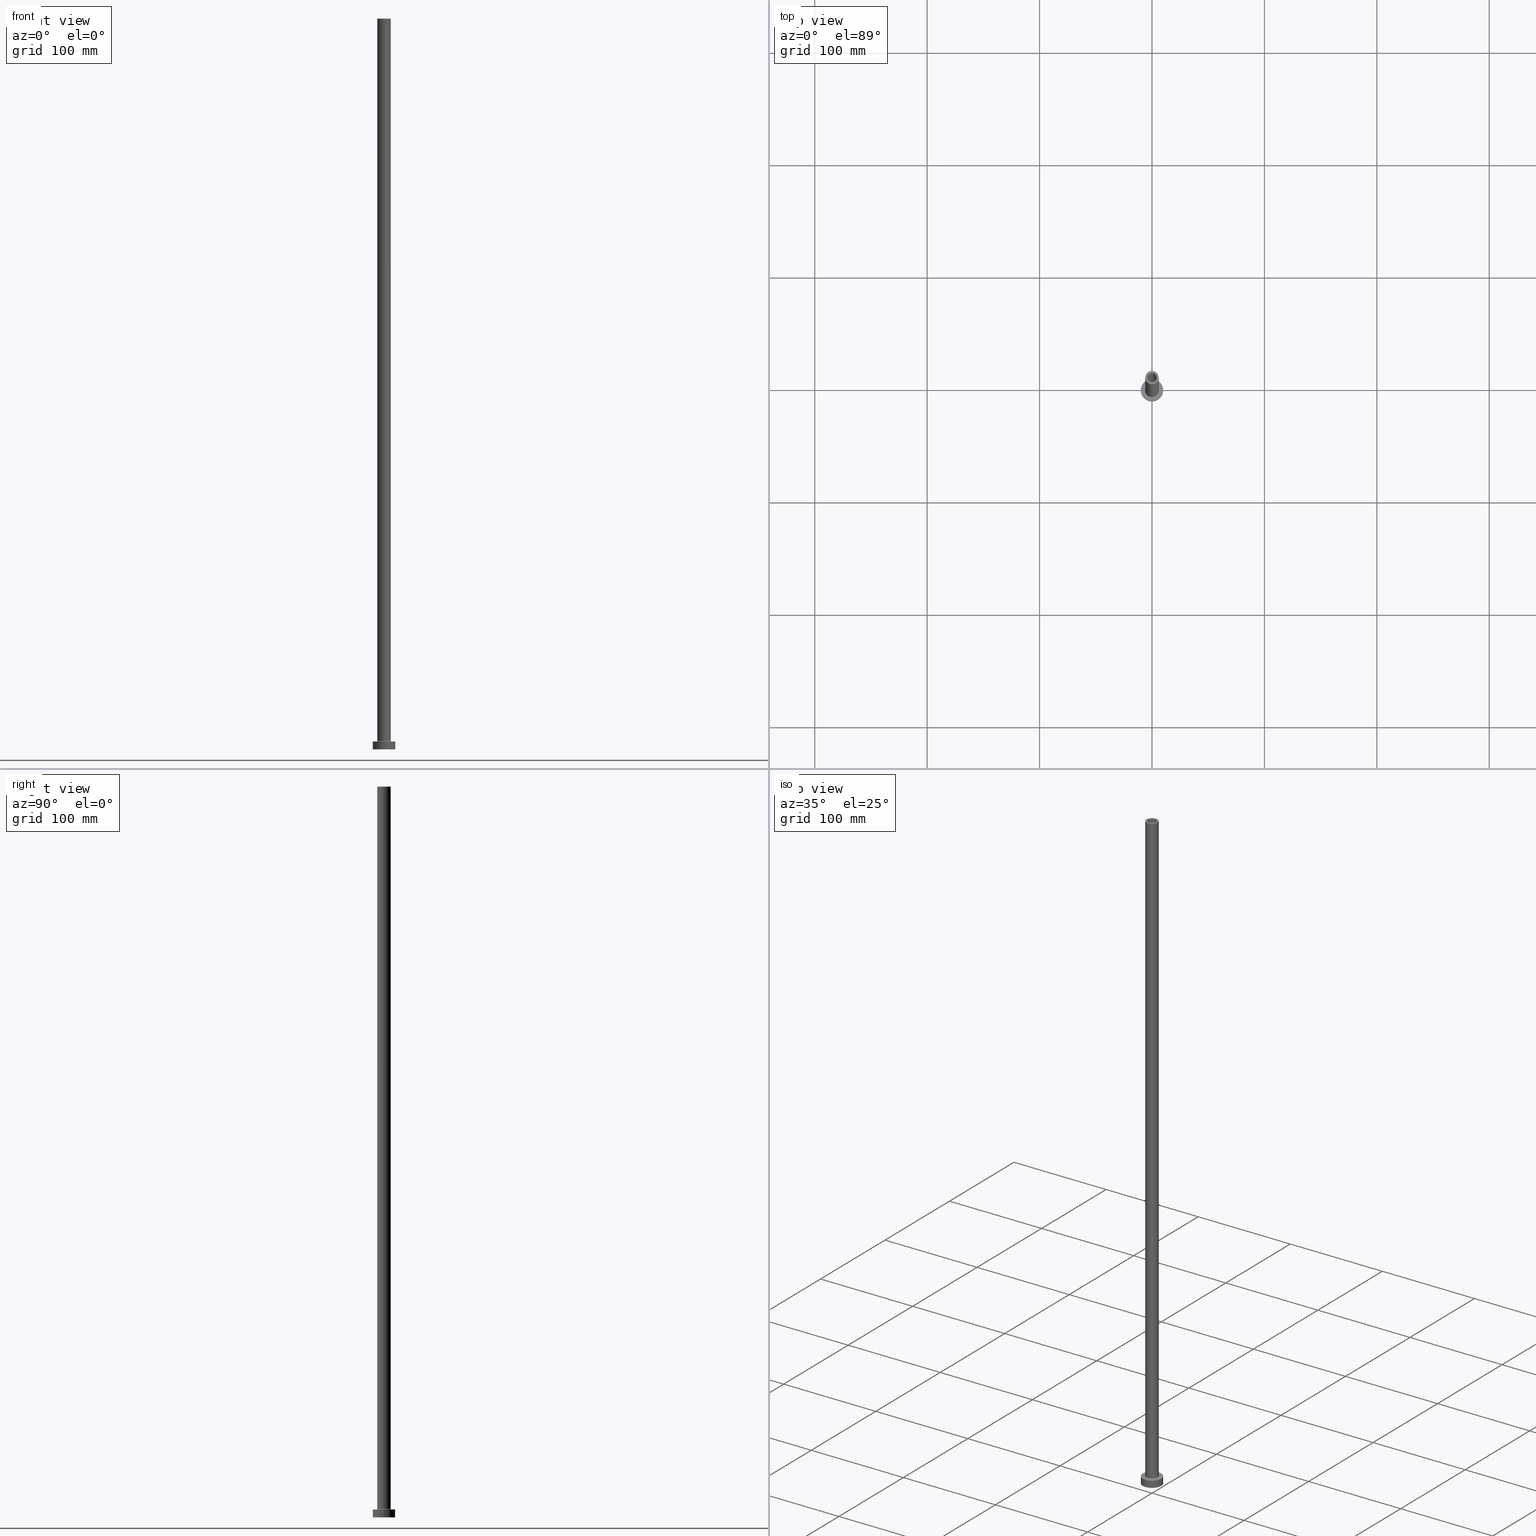
[diagram: canonical four-view strip — front | top / right | iso, engineering-drawing reading convention]
A machine part, canonical four-view strip (front | top / right | iso — engineering-drawing reading convention). The complete STEP part file that produces these views, byte-faithful:
ISO-10303-21;
HEADER;
FILE_DESCRIPTION (( 'STEP AP203' ),
    '1' );
FILE_NAME ('e93f.STEP',
    '2023-02-13T07:38:32',
    ( '' ),
    ( '' ),
    'SwSTEP 2.0',
    'SolidWorks 2019',
    '' );
FILE_SCHEMA (( 'CONFIG_CONTROL_DESIGN' ));
ENDSEC;

DATA;
#1 = DATE_AND_TIME ( #421, #439 ) ;
#2 = CYLINDRICAL_SURFACE ( 'NONE', #304, 6.000000000000000888 ) ;
#3 = CLOSED_SHELL ( 'NONE', ( #95, #387, #114, #127, #130, #330, #161, #177, #182, #401, #362, #192, #46, #265 ) ) ;
#4 = CYLINDRICAL_SURFACE ( 'NONE', #108, 10.00000000000000000 ) ;
#5 = ORIENTED_EDGE ( 'NONE', *, *, #250, .F. ) ;
#6 = CARTESIAN_POINT ( 'NONE',  ( 0.000000000000000000, 0.000000000000000000, 650.0000000000000000 ) ) ;
#7 = CARTESIAN_POINT ( 'NONE',  ( 0.000000000000000000, 0.000000000000000000, 0.000000000000000000 ) ) ;
#8 = AXIS2_PLACEMENT_3D ( 'NONE', #349, #128, #449 ) ;
#9 = CARTESIAN_POINT ( 'NONE',  ( 0.000000000000000000, 0.000000000000000000, 650.0000000000000000 ) ) ;
#10 = VERTEX_POINT ( 'NONE', #377 ) ;
#11 = FACE_OUTER_BOUND ( 'NONE', #22, .T. ) ;
#12 = CIRCLE ( 'NONE', #187, 6.000000000000000888 ) ;
#13 = LINE ( 'NONE', #302, #55 ) ;
#14 = FACE_OUTER_BOUND ( 'NONE', #152, .T. ) ;
#15 = CIRCLE ( 'NONE', #133, 6.000000000000000888 ) ;
#16 = ORIENTED_EDGE ( 'NONE', *, *, #17, .F. ) ;
#17 = EDGE_CURVE ( 'NONE', #320, #157, #146, .T. ) ;
#18 = CARTESIAN_POINT ( 'NONE',  ( 4.250000000000000000, 5.204748896376250699E-16, 0.000000000000000000 ) ) ;
#19 = DATE_AND_TIME ( #226, #85 ) ;
#20 = CC_DESIGN_PERSON_AND_ORGANIZATION_ASSIGNMENT ( #247, #131, ( #298 ) ) ;
#21 = DIRECTION ( 'NONE',  ( 1.000000000000000000, 0.000000000000000000, -0.000000000000000000 ) ) ;
#22 = EDGE_LOOP ( 'NONE', ( #419, #51, #282, #323 ) ) ;
#23 = ORIENTED_EDGE ( 'NONE', *, *, #240, .F. ) ;
#24 = SECURITY_CLASSIFICATION_LEVEL ( 'unclassified' ) ;
#25 = DIRECTION ( 'NONE',  ( 0.000000000000000000, 0.000000000000000000, 1.000000000000000000 ) ) ;
#26 = VERTEX_POINT ( 'NONE', #446 ) ;
#27 = DIRECTION ( 'NONE',  ( -0.000000000000000000, -0.000000000000000000, -1.000000000000000000 ) ) ;
#28 = ORIENTED_EDGE ( 'NONE', *, *, #214, .F. ) ;
#29 = VECTOR ( 'NONE', #448, 1000.000000000000000 ) ;
#30 = LOCAL_TIME ( 8, 38, 32.00000000000000000, #203 ) ;
#31 = CARTESIAN_POINT ( 'NONE',  ( 0.000000000000000000, 0.000000000000000000, 0.000000000000000000 ) ) ;
#32 = ORIENTED_EDGE ( 'NONE', *, *, #39, .T. ) ;
#33 = DIRECTION ( 'NONE',  ( -1.000000000000000000, 0.000000000000000000, 0.000000000000000000 ) ) ;
#34 = AXIS2_PLACEMENT_3D ( 'NONE', #246, #390, #172 ) ;
#35 = DIRECTION ( 'NONE',  ( 0.000000000000000000, 0.000000000000000000, 1.000000000000000000 ) ) ;
#36 = VERTEX_POINT ( 'NONE', #408 ) ;
#37 = PRODUCT_RELATED_PRODUCT_CATEGORY ( 'detail', '', ( #378 ) ) ;
#38 = CARTESIAN_POINT ( 'NONE',  ( 0.000000000000000000, 0.000000000000000000, 650.0000000000000000 ) ) ;
#39 = EDGE_CURVE ( 'NONE', #231, #43, #248, .T. ) ;
#40 = CARTESIAN_POINT ( 'NONE',  ( -6.000000000000000888, 0.000000000000000000, 650.0000000000000000 ) ) ;
#41 = VECTOR ( 'NONE', #170, 1000.000000000000000 ) ;
#42 = DIRECTION ( 'NONE',  ( 0.000000000000000000, 0.000000000000000000, 1.000000000000000000 ) ) ;
#43 = VERTEX_POINT ( 'NONE', #411 ) ;
#44 = APPROVAL_STATUS ( 'not_yet_approved' ) ;
#45 = ORIENTED_EDGE ( 'NONE', *, *, #81, .T. ) ;
#46 = ADVANCED_FACE ( 'NONE', ( #166, #129 ), #48, .F. ) ;
#47 = DIRECTION ( 'NONE',  ( -0.000000000000000000, -0.000000000000000000, -1.000000000000000000 ) ) ;
#48 = PLANE ( 'NONE',  #227 ) ;
#49 = AXIS2_PLACEMENT_3D ( 'NONE', #393, #241, #135 ) ;
#50 = APPROVAL_DATE_TIME ( #274, #65 ) ;
#51 = ORIENTED_EDGE ( 'NONE', *, *, #396, .T. ) ;
#52 = PERSON_AND_ORGANIZATION ( #344, #312 ) ;
#53 = ORIENTED_EDGE ( 'NONE', *, *, #396, .F. ) ;
#54 = APPLICATION_PROTOCOL_DEFINITION ( 'international standard', 'config_control_design', 1994, #441 ) ;
#55 = VECTOR ( 'NONE', #237, 1000.000000000000000 ) ;
#56 = CALENDAR_DATE ( 2023, 13, 2 ) ;
#57 = CARTESIAN_POINT ( 'NONE',  ( 0.000000000000000000, 0.000000000000000000, 617.0208152801712913 ) ) ;
#58 = EDGE_LOOP ( 'NONE', ( #60, #409 ) ) ;
#59 = CARTESIAN_POINT ( 'NONE',  ( 0.000000000000000000, 0.000000000000000000, 605.0000000000000000 ) ) ;
#60 = ORIENTED_EDGE ( 'NONE', *, *, #278, .F. ) ;
#61 = CYLINDRICAL_SURFACE ( 'NONE', #148, 4.250000000000000000 ) ;
#62 = VERTEX_POINT ( 'NONE', #18 ) ;
#63 = EDGE_CURVE ( 'NONE', #320, #36, #159, .T. ) ;
#64 = AXIS2_PLACEMENT_3D ( 'NONE', #59, #249, #324 ) ;
#65 = APPROVAL ( #271, 'NEUR�EN�' ) ;
#66 = APPROVAL_DATE_TIME ( #245, #460 ) ;
#67 = CARTESIAN_POINT ( 'NONE',  ( 6.000000000000000888, 7.347880794884120722E-16, 7.700000000000040146 ) ) ;
#68 = DIRECTION ( 'NONE',  ( 1.000000000000000000, 0.000000000000000000, 0.000000000000000000 ) ) ;
#69 = TOROIDAL_SURFACE ( 'NONE', #391, 6.700000000000001066, 0.6999999999999999556 ) ;
#70 = EDGE_CURVE ( 'NONE', #26, #97, #405, .T. ) ;
#71 = DIRECTION ( 'NONE',  ( 0.000000000000000000, 0.000000000000000000, 1.000000000000000000 ) ) ;
#72 = AXIS2_PLACEMENT_3D ( 'NONE', #351, #25, #178 ) ;
#73 = CARTESIAN_POINT ( 'NONE',  ( 0.000000000000000000, 0.000000000000000000, 0.000000000000000000 ) ) ;
#74 = DIRECTION ( 'NONE',  ( 1.000000000000000000, 0.000000000000000000, 0.000000000000000000 ) ) ;
#75 = ORIENTED_EDGE ( 'NONE', *, *, #326, .T. ) ;
#76 = CARTESIAN_POINT ( 'NONE',  ( 0.000000000000000000, 0.000000000000000000, 7.000000000000000000 ) ) ;
#77 = DIRECTION ( 'NONE',  ( 1.000000000000000000, 0.000000000000000000, 0.000000000000000000 ) ) ;
#78 = AXIS2_PLACEMENT_3D ( 'NONE', #374, #294, #74 ) ;
#79 = LOCAL_TIME ( 8, 38, 32.00000000000000000, #429 ) ;
#80 = CARTESIAN_POINT ( 'NONE',  ( -6.700000000000001066, 8.205133554287267548E-16, 7.000000000000020428 ) ) ;
#81 = EDGE_CURVE ( 'NONE', #352, #389, #455, .T. ) ;
#82 = ORIENTED_EDGE ( 'NONE', *, *, #214, .T. ) ;
#83 = FACE_BOUND ( 'NONE', #367, .T. ) ;
#84 = CARTESIAN_POINT ( 'NONE',  ( 0.000000000000000000, 0.000000000000000000, 650.0000000000000000 ) ) ;
#85 = LOCAL_TIME ( 8, 38, 32.00000000000000000, #276 ) ;
#86 = PLANE ( 'NONE',  #143 ) ;
#87 = CYLINDRICAL_SURFACE ( 'NONE', #279, 4.099999999999999645 ) ;
#88 = VERTEX_POINT ( 'NONE', #125 ) ;
#89 =( NAMED_UNIT ( * ) PLANE_ANGLE_UNIT ( ) SI_UNIT ( $, .RADIAN. ) );
#90 = DIRECTION ( 'NONE',  ( 0.000000000000000000, 0.000000000000000000, 1.000000000000000000 ) ) ;
#91 = ORIENTED_EDGE ( 'NONE', *, *, #346, .F. ) ;
#92 = CIRCLE ( 'NONE', #78, 6.700000000000001066 ) ;
#93 = AXIS2_PLACEMENT_3D ( 'NONE', #228, #123, #154 ) ;
#94 = PERSON_AND_ORGANIZATION ( #344, #312 ) ;
#95 = ADVANCED_FACE ( 'NONE', ( #415 ), #87, .F. ) ;
#96 = DIRECTION ( 'NONE',  ( 0.000000000000000000, 0.000000000000000000, 1.000000000000000000 ) ) ;
#97 = VERTEX_POINT ( 'NONE', #458 ) ;
#98 = APPROVAL_STATUS ( 'not_yet_approved' ) ;
#99 = DIRECTION ( 'NONE',  ( -1.000000000000000000, 0.000000000000000000, 0.000000000000000000 ) ) ;
#100 = ORIENTED_EDGE ( 'NONE', *, *, #278, .T. ) ;
#101 = CC_DESIGN_PERSON_AND_ORGANIZATION_ASSIGNMENT ( #342, #267, ( #117 ) ) ;
#102 = DIRECTION ( 'NONE',  ( -0.000000000000000000, -0.000000000000000000, -1.000000000000000000 ) ) ;
#103 = COORDINATED_UNIVERSAL_TIME_OFFSET ( 1, 0, .AHEAD. ) ;
#104 = CARTESIAN_POINT ( 'NONE',  ( 0.000000000000000000, 0.000000000000000000, 7.700000000000040146 ) ) ;
#105 = ORIENTED_EDGE ( 'NONE', *, *, #300, .T. ) ;
#106 = CARTESIAN_POINT ( 'NONE',  ( 6.000000000000000888, 7.347880794884120722E-16, 650.0000000000000000 ) ) ;
#107 = ORIENTED_EDGE ( 'NONE', *, *, #353, .F. ) ;
#108 = AXIS2_PLACEMENT_3D ( 'NONE', #132, #255, #33 ) ;
#109 = DIRECTION ( 'NONE',  ( 1.000000000000000000, 0.000000000000000000, 0.000000000000000000 ) ) ;
#110 = CC_DESIGN_DATE_AND_TIME_ASSIGNMENT ( #137, #457, ( #164 ) ) ;
#111 = EDGE_LOOP ( 'NONE', ( #258, #453, #32, #355 ) ) ;
#112 = VECTOR ( 'NONE', #368, 1000.000000000000000 ) ;
#113 = FACE_OUTER_BOUND ( 'NONE', #111, .T. ) ;
#114 = ADVANCED_FACE ( 'NONE', ( #208 ), #69, .F. ) ;
#115 = ORIENTED_EDGE ( 'NONE', *, *, #438, .F. ) ;
#116 = CARTESIAN_POINT ( 'NONE',  ( -4.250000000000000000, 0.000000000000000000, 605.0000000000000000 ) ) ;
#117 = PRODUCT_DEFINITION ( 'NEZN�M�', '', #298, #165 ) ;
#118 = CYLINDRICAL_SURFACE ( 'NONE', #394, 4.099999999999999645 ) ;
#119 = DIRECTION ( 'NONE',  ( -1.000000000000000000, 1.224646799147353454E-16, 0.000000000000000000 ) ) ;
#120 =( GEOMETRIC_REPRESENTATION_CONTEXT ( 3 ) GLOBAL_UNCERTAINTY_ASSIGNED_CONTEXT ( ( #244 ) ) GLOBAL_UNIT_ASSIGNED_CONTEXT ( ( #305, #89, #407 ) ) REPRESENTATION_CONTEXT ( 'NONE', 'WORKASPACE' ) );
#121 = PERSON_AND_ORGANIZATION ( #344, #312 ) ;
#122 = DIRECTION ( 'NONE',  ( -0.000000000000000000, -0.000000000000000000, -1.000000000000000000 ) ) ;
#123 = DIRECTION ( 'NONE',  ( 0.000000000000000000, 0.000000000000000000, 1.000000000000000000 ) ) ;
#124 = PRODUCT_DEFINITION_SHAPE ( 'NONE', 'NONE',  #117 ) ;
#125 = CARTESIAN_POINT ( 'NONE',  ( -6.000000000000000888, 0.000000000000000000, 7.700000000000040146 ) ) ;
#126 = AXIS2_PLACEMENT_3D ( 'NONE', #31, #102, #251 ) ;
#127 = ADVANCED_FACE ( 'NONE', ( #215 ), #284, .T. ) ;
#128 = DIRECTION ( 'NONE',  ( 0.000000000000000000, -1.000000000000000000, 0.000000000000000000 ) ) ;
#129 = FACE_OUTER_BOUND ( 'NONE', #162, .T. ) ;
#130 = ADVANCED_FACE ( 'NONE', ( #180 ), #4, .T. ) ;
#131 = PERSON_AND_ORGANIZATION_ROLE ( 'design_supplier' ) ;
#132 = CARTESIAN_POINT ( 'NONE',  ( 0.000000000000000000, 0.000000000000000000, 7.000000000000000000 ) ) ;
#133 = AXIS2_PLACEMENT_3D ( 'NONE', #406, #398, #223 ) ;
#134 = CC_DESIGN_APPROVAL ( #65, ( #117 ) ) ;
#135 = DIRECTION ( 'NONE',  ( 1.000000000000000000, 0.000000000000000000, 0.000000000000000000 ) ) ;
#136 = ORIENTED_EDGE ( 'NONE', *, *, #433, .T. ) ;
#137 = DATE_AND_TIME ( #56, #150 ) ;
#138 = DIRECTION ( 'NONE',  ( 1.000000000000000000, 0.000000000000000000, -0.000000000000000000 ) ) ;
#139 = EDGE_LOOP ( 'NONE', ( #222, #16, #306, #100 ) ) ;
#140 = DIRECTION ( 'NONE',  ( 0.000000000000000000, 0.000000000000000000, 1.000000000000000000 ) ) ;
#141 = VERTEX_POINT ( 'NONE', #175 ) ;
#142 = EDGE_CURVE ( 'NONE', #97, #26, #257, .T. ) ;
#143 = AXIS2_PLACEMENT_3D ( 'NONE', #268, #200, #337 ) ;
#144 = FACE_OUTER_BOUND ( 'NONE', #139, .T. ) ;
#145 = DIRECTION ( 'NONE',  ( 1.000000000000000000, 0.000000000000000000, 0.000000000000000000 ) ) ;
#146 = CIRCLE ( 'NONE', #280, 10.00000000000000000 ) ;
#147 = CARTESIAN_POINT ( 'NONE',  ( 4.099999999999999645, 5.021051876504147385E-16, 650.0000000000000000 ) ) ;
#148 = AXIS2_PLACEMENT_3D ( 'NONE', #57, #210, #206 ) ;
#149 = DIRECTION ( 'NONE',  ( 1.000000000000000000, 0.000000000000000000, 0.000000000000000000 ) ) ;
#150 = LOCAL_TIME ( 8, 38, 32.00000000000000000, #315 ) ;
#151 = ORIENTED_EDGE ( 'NONE', *, *, #63, .F. ) ;
#152 = EDGE_LOOP ( 'NONE', ( #105, #262 ) ) ;
#153 = CYLINDRICAL_SURFACE ( 'NONE', #260, 10.00000000000000000 ) ;
#154 = DIRECTION ( 'NONE',  ( 1.000000000000000000, 0.000000000000000000, 0.000000000000000000 ) ) ;
#155 = CIRCLE ( 'NONE', #72, 10.00000000000000000 ) ;
#156 = ORIENTED_EDGE ( 'NONE', *, *, #142, .F. ) ;
#157 = VERTEX_POINT ( 'NONE', #388 ) ;
#158 = DIRECTION ( 'NONE',  ( 0.000000000000000000, 0.000000000000000000, -1.000000000000000000 ) ) ;
#159 = LINE ( 'NONE', #307, #221 ) ;
#160 = LINE ( 'NONE', #414, #233 ) ;
#161 = ADVANCED_FACE ( 'NONE', ( #292, #216 ), #395, .T. ) ;
#162 = EDGE_LOOP ( 'NONE', ( #423, #432 ) ) ;
#163 = TOROIDAL_SURFACE ( 'NONE', #451, 6.700000000000001066, 0.6999999999999999556 ) ;
#164 = SECURITY_CLASSIFICATION ( '', '', #24 ) ;
#165 = DESIGN_CONTEXT ( 'detailed design', #441, 'design' ) ;
#166 = FACE_BOUND ( 'NONE', #238, .T. ) ;
#167 = ORIENTED_EDGE ( 'NONE', *, *, #250, .T. ) ;
#168 = EDGE_CURVE ( 'NONE', #389, #352, #412, .T. ) ;
#169 = PERSON_AND_ORGANIZATION_ROLE ( 'classification_officer' ) ;
#170 = DIRECTION ( 'NONE',  ( 0.000000000000000000, 0.000000000000000000, -1.000000000000000000 ) ) ;
#171 = ORIENTED_EDGE ( 'NONE', *, *, #184, .F. ) ;
#172 = DIRECTION ( 'NONE',  ( 1.000000000000000000, 0.000000000000000000, -0.000000000000000000 ) ) ;
#173 = CIRCLE ( 'NONE', #218, 6.000000000000000888 ) ;
#174 = PERSON_AND_ORGANIZATION_ROLE ( 'creator' ) ;
#175 = CARTESIAN_POINT ( 'NONE',  ( -4.099999999999999645, 0.000000000000000000, 605.0000000000000000 ) ) ;
#176 = ORIENTED_EDGE ( 'NONE', *, *, #269, .T. ) ;
#177 = ADVANCED_FACE ( 'NONE', ( #427, #354 ), #361, .F. ) ;
#178 = DIRECTION ( 'NONE',  ( 1.000000000000000000, 0.000000000000000000, 0.000000000000000000 ) ) ;
#179 = ORIENTED_EDGE ( 'NONE', *, *, #384, .F. ) ;
#180 = FACE_OUTER_BOUND ( 'NONE', #243, .T. ) ;
#181 = LINE ( 'NONE', #147, #195 ) ;
#182 = ADVANCED_FACE ( 'NONE', ( #318 ), #2, .T. ) ;
#183 = CARTESIAN_POINT ( 'NONE',  ( 0.000000000000000000, 0.000000000000000000, 0.000000000000000000 ) ) ;
#184 = EDGE_CURVE ( 'NONE', #440, #141, #310, .T. ) ;
#185 = DIRECTION ( 'NONE',  ( 1.000000000000000000, 0.000000000000000000, 0.000000000000000000 ) ) ;
#186 = ORIENTED_EDGE ( 'NONE', *, *, #370, .F. ) ;
#187 = AXIS2_PLACEMENT_3D ( 'NONE', #364, #371, #185 ) ;
#188 = CC_DESIGN_APPROVAL ( #460, ( #164 ) ) ;
#189 = DIRECTION ( 'NONE',  ( 1.000000000000000000, 0.000000000000000000, 0.000000000000000000 ) ) ;
#190 = CC_DESIGN_PERSON_AND_ORGANIZATION_ASSIGNMENT ( #254, #169, ( #164 ) ) ;
#191 = DIRECTION ( 'NONE',  ( 0.000000000000000000, 0.000000000000000000, -1.000000000000000000 ) ) ;
#192 = ADVANCED_FACE ( 'NONE', ( #286 ), #61, .F. ) ;
#193 = EDGE_LOOP ( 'NONE', ( #186, #275, #136, #171 ) ) ;
#194 = APPROVAL_ROLE ( '' ) ;
#195 = VECTOR ( 'NONE', #296, 1000.000000000000000 ) ;
#196 = CARTESIAN_POINT ( 'NONE',  ( 0.000000000000000000, 0.000000000000000000, 605.0000000000000000 ) ) ;
#197 = CARTESIAN_POINT ( 'NONE',  ( 6.000000000000000888, 7.347880794884120722E-16, 650.0000000000000000 ) ) ;
#198 = CARTESIAN_POINT ( 'NONE',  ( 0.000000000000000000, 0.000000000000000000, 605.0000000000000000 ) ) ;
#199 = AXIS2_PLACEMENT_3D ( 'NONE', #84, #234, #379 ) ;
#200 = DIRECTION ( 'NONE',  ( 0.000000000000000000, 0.000000000000000000, 1.000000000000000000 ) ) ;
#201 = APPROVAL ( #44, 'NEUR�EN�' ) ;
#202 = ORIENTED_EDGE ( 'NONE', *, *, #70, .F. ) ;
#203 = COORDINATED_UNIVERSAL_TIME_OFFSET ( 1, 0, .AHEAD. ) ;
#204 = DIRECTION ( 'NONE',  ( 1.000000000000000000, 0.000000000000000000, 0.000000000000000000 ) ) ;
#205 = VECTOR ( 'NONE', #47, 1000.000000000000000 ) ;
#206 = DIRECTION ( 'NONE',  ( -1.000000000000000000, 0.000000000000000000, 0.000000000000000000 ) ) ;
#207 = ORIENTED_EDGE ( 'NONE', *, *, #380, .T. ) ;
#208 = FACE_OUTER_BOUND ( 'NONE', #290, .T. ) ;
#209 = ORIENTED_EDGE ( 'NONE', *, *, #433, .F. ) ;
#210 = DIRECTION ( 'NONE',  ( 0.000000000000000000, 0.000000000000000000, -1.000000000000000000 ) ) ;
#211 = CIRCLE ( 'NONE', #273, 4.250000000000000000 ) ;
#212 = EDGE_LOOP ( 'NONE', ( #339, #82 ) ) ;
#213 = CC_DESIGN_SECURITY_CLASSIFICATION ( #164, ( #298 ) ) ;
#214 = EDGE_CURVE ( 'NONE', #157, #320, #155, .T. ) ;
#215 = FACE_OUTER_BOUND ( 'NONE', #360, .T. ) ;
#216 = FACE_OUTER_BOUND ( 'NONE', #212, .T. ) ;
#217 = CARTESIAN_POINT ( 'NONE',  ( -6.000000000000000888, 0.000000000000000000, 650.0000000000000000 ) ) ;
#218 = AXIS2_PLACEMENT_3D ( 'NONE', #434, #42, #77 ) ;
#219 = DIRECTION ( 'NONE',  ( 1.000000000000000000, 0.000000000000000000, 0.000000000000000000 ) ) ;
#220 = DIRECTION ( 'NONE',  ( 1.000000000000000000, 0.000000000000000000, 0.000000000000000000 ) ) ;
#221 = VECTOR ( 'NONE', #122, 1000.000000000000000 ) ;
#222 = ORIENTED_EDGE ( 'NONE', *, *, #435, .F. ) ;
#223 = DIRECTION ( 'NONE',  ( 1.000000000000000000, 0.000000000000000000, 0.000000000000000000 ) ) ;
#224 = EDGE_CURVE ( 'NONE', #389, #10, #357, .T. ) ;
#225 = DIRECTION ( 'NONE',  ( 0.000000000000000000, 0.000000000000000000, 1.000000000000000000 ) ) ;
#226 = CALENDAR_DATE ( 2023, 13, 2 ) ;
#227 = AXIS2_PLACEMENT_3D ( 'NONE', #196, #341, #21 ) ;
#228 = CARTESIAN_POINT ( 'NONE',  ( 0.000000000000000000, 0.000000000000000000, 0.000000000000000000 ) ) ;
#229 = ORIENTED_EDGE ( 'NONE', *, *, #370, .T. ) ;
#230 = EDGE_CURVE ( 'NONE', #10, #62, #332, .T. ) ;
#231 = VERTEX_POINT ( 'NONE', #67 ) ;
#232 = CALENDAR_DATE ( 2023, 13, 2 ) ;
#233 = VECTOR ( 'NONE', #158, 1000.000000000000000 ) ;
#234 = DIRECTION ( 'NONE',  ( 0.000000000000000000, 0.000000000000000000, 1.000000000000000000 ) ) ;
#235 = LINE ( 'NONE', #197, #205 ) ;
#236 = ORIENTED_EDGE ( 'NONE', *, *, #303, .T. ) ;
#237 = DIRECTION ( 'NONE',  ( 0.000000000000000000, 0.000000000000000000, -1.000000000000000000 ) ) ;
#238 = EDGE_LOOP ( 'NONE', ( #385, #287 ) ) ;
#239 = EDGE_LOOP ( 'NONE', ( #270, #23 ) ) ;
#240 = EDGE_CURVE ( 'NONE', #62, #10, #211, .T. ) ;
#241 = DIRECTION ( 'NONE',  ( 0.000000000000000000, 0.000000000000000000, 1.000000000000000000 ) ) ;
#242 = AXIS2_PLACEMENT_3D ( 'NONE', #295, #71, #189 ) ;
#243 = EDGE_LOOP ( 'NONE', ( #28, #383, #75, #151 ) ) ;
#244 = UNCERTAINTY_MEASURE_WITH_UNIT (LENGTH_MEASURE( 1.000000000000000082E-05 ), #305, 'distance_accuracy_value', 'NONE');
#245 = DATE_AND_TIME ( #424, #79 ) ;
#246 = CARTESIAN_POINT ( 'NONE',  ( 0.000000000000000000, 0.000000000000000000, 7.000000000000000000 ) ) ;
#247 = PERSON_AND_ORGANIZATION ( #344, #312 ) ;
#248 = CIRCLE ( 'NONE', #8, 0.7000000000000000666 ) ;
#249 = DIRECTION ( 'NONE',  ( 0.000000000000000000, 0.000000000000000000, 1.000000000000000000 ) ) ;
#250 = EDGE_CURVE ( 'NONE', #88, #231, #173, .T. ) ;
#251 = DIRECTION ( 'NONE',  ( 1.000000000000000000, 0.000000000000000000, 0.000000000000000000 ) ) ;
#252 = AXIS2_PLACEMENT_3D ( 'NONE', #417, #340, #119 ) ;
#253 = CC_DESIGN_PERSON_AND_ORGANIZATION_ASSIGNMENT ( #94, #174, ( #298 ) ) ;
#254 = PERSON_AND_ORGANIZATION ( #344, #312 ) ;
#255 = DIRECTION ( 'NONE',  ( -0.000000000000000000, -0.000000000000000000, -1.000000000000000000 ) ) ;
#256 = DIRECTION ( 'NONE',  ( -0.000000000000000000, -0.000000000000000000, -1.000000000000000000 ) ) ;
#257 = CIRCLE ( 'NONE', #459, 4.099999999999999645 ) ;
#258 = ORIENTED_EDGE ( 'NONE', *, *, #456, .F. ) ;
#259 = DIRECTION ( 'NONE',  ( -0.000000000000000000, -0.000000000000000000, -1.000000000000000000 ) ) ;
#260 = AXIS2_PLACEMENT_3D ( 'NONE', #76, #256, #366 ) ;
#261 = DIRECTION ( 'NONE',  ( -0.000000000000000000, -0.000000000000000000, -1.000000000000000000 ) ) ;
#262 = ORIENTED_EDGE ( 'NONE', *, *, #353, .T. ) ;
#263 = FACE_OUTER_BOUND ( 'NONE', #193, .T. ) ;
#264 = ORIENTED_EDGE ( 'NONE', *, *, #438, .T. ) ;
#265 = ADVANCED_FACE ( 'NONE', ( #263 ), #118, .F. ) ;
#266 = DIRECTION ( 'NONE',  ( -1.000000000000000000, 0.000000000000000000, 0.000000000000000000 ) ) ;
#267 = PERSON_AND_ORGANIZATION_ROLE ( 'creator' ) ;
#268 = CARTESIAN_POINT ( 'NONE',  ( 0.000000000000000000, 0.000000000000000000, 650.0000000000000000 ) ) ;
#269 = EDGE_CURVE ( 'NONE', #231, #88, #15, .T. ) ;
#270 = ORIENTED_EDGE ( 'NONE', *, *, #230, .F. ) ;
#271 = APPROVAL_STATUS ( 'not_yet_approved' ) ;
#272 = ORIENTED_EDGE ( 'NONE', *, *, #70, .T. ) ;
#273 = AXIS2_PLACEMENT_3D ( 'NONE', #7, #259, #109 ) ;
#274 = DATE_AND_TIME ( #232, #30 ) ;
#275 = ORIENTED_EDGE ( 'NONE', *, *, #142, .T. ) ;
#276 = COORDINATED_UNIVERSAL_TIME_OFFSET ( 1, 0, .AHEAD. ) ;
#277 = ORIENTED_EDGE ( 'NONE', *, *, #384, .T. ) ;
#278 = EDGE_CURVE ( 'NONE', #36, #313, #285, .T. ) ;
#279 = AXIS2_PLACEMENT_3D ( 'NONE', #382, #425, #99 ) ;
#280 = AXIS2_PLACEMENT_3D ( 'NONE', #454, #90, #204 ) ;
#281 = DIRECTION ( 'NONE',  ( -1.000000000000000000, 0.000000000000000000, 0.000000000000000000 ) ) ;
#282 = ORIENTED_EDGE ( 'NONE', *, *, #240, .T. ) ;
#283 = APPROVAL_ROLE ( '' ) ;
#284 = CYLINDRICAL_SURFACE ( 'NONE', #447, 6.000000000000000888 ) ;
#285 = CIRCLE ( 'NONE', #372, 10.00000000000000000 ) ;
#286 = FACE_OUTER_BOUND ( 'NONE', #399, .T. ) ;
#287 = ORIENTED_EDGE ( 'NONE', *, *, #184, .T. ) ;
#288 = CARTESIAN_POINT ( 'NONE',  ( 0.000000000000000000, 0.000000000000000000, 650.0000000000000000 ) ) ;
#289 = CC_DESIGN_PERSON_AND_ORGANIZATION_ASSIGNMENT ( #121, #381, ( #378 ) ) ;
#290 = EDGE_LOOP ( 'NONE', ( #5, #386, #334, #314 ) ) ;
#291 = APPLICATION_CONTEXT ( 'configuration controlled 3d designs of mechanical parts and assemblies' ) ;
#292 = FACE_BOUND ( 'NONE', #428, .T. ) ;
#293 = AXIS2_PLACEMENT_3D ( 'NONE', #9, #225, #149 ) ;
#294 = DIRECTION ( 'NONE',  ( -0.000000000000000000, -0.000000000000000000, -1.000000000000000000 ) ) ;
#295 = CARTESIAN_POINT ( 'NONE',  ( 0.000000000000000000, 0.000000000000000000, 605.0000000000000000 ) ) ;
#296 = DIRECTION ( 'NONE',  ( 0.000000000000000000, 0.000000000000000000, -1.000000000000000000 ) ) ;
#297 = VERTEX_POINT ( 'NONE', #106 ) ;
#298 = PRODUCT_DEFINITION_FORMATION_WITH_SPECIFIED_SOURCE ( 'LIBOVOLN�', '', #378, .NOT_KNOWN. ) ;
#299 = DIRECTION ( 'NONE',  ( 0.000000000000000000, 0.000000000000000000, -1.000000000000000000 ) ) ;
#300 = EDGE_CURVE ( 'NONE', #338, #297, #437, .T. ) ;
#301 = ORIENTED_EDGE ( 'NONE', *, *, #300, .F. ) ;
#302 = CARTESIAN_POINT ( 'NONE',  ( 4.250000000000000000, 5.204748896376250699E-16, 617.0208152801712913 ) ) ;
#303 = EDGE_CURVE ( 'NONE', #450, #43, #92, .T. ) ;
#304 = AXIS2_PLACEMENT_3D ( 'NONE', #6, #422, #461 ) ;
#305 =( LENGTH_UNIT ( ) NAMED_UNIT ( * ) SI_UNIT ( .MILLI., .METRE. ) );
#306 = ORIENTED_EDGE ( 'NONE', *, *, #63, .T. ) ;
#307 = CARTESIAN_POINT ( 'NONE',  ( -10.00000000000000000, 0.000000000000000000, 7.000000000000000000 ) ) ;
#308 = CARTESIAN_POINT ( 'NONE',  ( 10.00000000000000000, 1.224646799147353256E-15, 7.000000000000000000 ) ) ;
#309 = DIRECTION ( 'NONE',  ( 1.000000000000000000, 0.000000000000000000, 0.000000000000000000 ) ) ;
#310 = CIRCLE ( 'NONE', #49, 4.099999999999999645 ) ;
#311 = DATE_TIME_ROLE ( 'creation_date' ) ;
#312 = ORGANIZATION ( 'NEUR�EN�', 'NEUR�EN�', '' ) ;
#313 = VERTEX_POINT ( 'NONE', #404 ) ;
#314 = ORIENTED_EDGE ( 'NONE', *, *, #39, .F. ) ;
#315 = COORDINATED_UNIVERSAL_TIME_OFFSET ( 1, 0, .AHEAD. ) ;
#316 = CARTESIAN_POINT ( 'NONE',  ( 0.000000000000000000, 0.000000000000000000, 650.0000000000000000 ) ) ;
#317 = ADVANCED_BREP_SHAPE_REPRESENTATION ( 'e93f', ( #420, #93 ), #120 ) ;
#318 = FACE_OUTER_BOUND ( 'NONE', #369, .T. ) ;
#319 = CIRCLE ( 'NONE', #348, 6.700000000000001066 ) ;
#320 = VERTEX_POINT ( 'NONE', #436 ) ;
#321 = DIRECTION ( 'NONE',  ( 1.000000000000000000, 0.000000000000000000, 0.000000000000000000 ) ) ;
#322 = DIRECTION ( 'NONE',  ( 0.000000000000000000, 0.000000000000000000, 1.000000000000000000 ) ) ;
#323 = ORIENTED_EDGE ( 'NONE', *, *, #224, .F. ) ;
#324 = DIRECTION ( 'NONE',  ( 1.000000000000000000, 0.000000000000000000, 0.000000000000000000 ) ) ;
#325 = AXIS2_PLACEMENT_3D ( 'NONE', #363, #140, #138 ) ;
#326 = EDGE_CURVE ( 'NONE', #313, #36, #365, .T. ) ;
#327 = APPROVAL_PERSON_ORGANIZATION ( #375, #201, #194 ) ;
#328 = CARTESIAN_POINT ( 'NONE',  ( 0.000000000000000000, 0.000000000000000000, 7.000000000000000000 ) ) ;
#329 = DIRECTION ( 'NONE',  ( 1.000000000000000000, 0.000000000000000000, 0.000000000000000000 ) ) ;
#330 = ADVANCED_FACE ( 'NONE', ( #144 ), #153, .T. ) ;
#331 = CARTESIAN_POINT ( 'NONE',  ( 0.000000000000000000, 0.000000000000000000, 7.700000000000040146 ) ) ;
#332 = CIRCLE ( 'NONE', #126, 4.250000000000000000 ) ;
#333 = CARTESIAN_POINT ( 'NONE',  ( 0.000000000000000000, 0.000000000000000000, 617.0208152801712913 ) ) ;
#334 = ORIENTED_EDGE ( 'NONE', *, *, #380, .F. ) ;
#335 = DIRECTION ( 'NONE',  ( 0.000000000000000000, 0.000000000000000000, 1.000000000000000000 ) ) ;
#336 = AXIS2_PLACEMENT_3D ( 'NONE', #198, #343, #309 ) ;
#337 = DIRECTION ( 'NONE',  ( 1.000000000000000000, 0.000000000000000000, -0.000000000000000000 ) ) ;
#338 = VERTEX_POINT ( 'NONE', #217 ) ;
#339 = ORIENTED_EDGE ( 'NONE', *, *, #17, .T. ) ;
#340 = DIRECTION ( 'NONE',  ( 1.224646799147353207E-16, 1.000000000000000000, -0.000000000000000000 ) ) ;
#341 = DIRECTION ( 'NONE',  ( 0.000000000000000000, 0.000000000000000000, 1.000000000000000000 ) ) ;
#342 = PERSON_AND_ORGANIZATION ( #344, #312 ) ;
#343 = DIRECTION ( 'NONE',  ( 0.000000000000000000, 0.000000000000000000, 1.000000000000000000 ) ) ;
#344 = PERSON ( 'NEUR�EN�', 'NEUR�EN�', 'NEUR�EN�', ('NEUR�EN�'), ('NEUR�EN�'), ('NEUR�EN�') ) ;
#345 = LINE ( 'NONE', #308, #29 ) ;
#346 = EDGE_CURVE ( 'NONE', #141, #440, #445, .T. ) ;
#347 = EDGE_LOOP ( 'NONE', ( #272, #229, #91, #209 ) ) ;
#348 = AXIS2_PLACEMENT_3D ( 'NONE', #328, #261, #220 ) ;
#349 = CARTESIAN_POINT ( 'NONE',  ( 6.700000000000001066, 0.000000000000000000, 7.700000000000040146 ) ) ;
#350 = PERSON_AND_ORGANIZATION ( #344, #312 ) ;
#351 = CARTESIAN_POINT ( 'NONE',  ( 0.000000000000000000, 0.000000000000000000, 7.000000000000000000 ) ) ;
#352 = VERTEX_POINT ( 'NONE', #400 ) ;
#353 = EDGE_CURVE ( 'NONE', #297, #338, #12, .T. ) ;
#354 = FACE_OUTER_BOUND ( 'NONE', #58, .T. ) ;
#355 = ORIENTED_EDGE ( 'NONE', *, *, #303, .F. ) ;
#356 = CIRCLE ( 'NONE', #252, 0.7000000000000000666 ) ;
#357 = LINE ( 'NONE', #430, #41 ) ;
#358 = AXIS2_PLACEMENT_3D ( 'NONE', #333, #299, #442 ) ;
#359 = APPROVAL_PERSON_ORGANIZATION ( #52, #65, #410 ) ;
#360 = EDGE_LOOP ( 'NONE', ( #107, #264, #176, #179 ) ) ;
#361 = PLANE ( 'NONE',  #325 ) ;
#362 = ADVANCED_FACE ( 'NONE', ( #113 ), #163, .F. ) ;
#363 = CARTESIAN_POINT ( 'NONE',  ( 0.000000000000000000, 0.000000000000000000, 0.000000000000000000 ) ) ;
#364 = CARTESIAN_POINT ( 'NONE',  ( 0.000000000000000000, 0.000000000000000000, 650.0000000000000000 ) ) ;
#365 = CIRCLE ( 'NONE', #402, 10.00000000000000000 ) ;
#366 = DIRECTION ( 'NONE',  ( -1.000000000000000000, 0.000000000000000000, 0.000000000000000000 ) ) ;
#367 = EDGE_LOOP ( 'NONE', ( #202, #156 ) ) ;
#368 = DIRECTION ( 'NONE',  ( -0.000000000000000000, -0.000000000000000000, -1.000000000000000000 ) ) ;
#369 = EDGE_LOOP ( 'NONE', ( #115, #301, #277, #167 ) ) ;
#370 = EDGE_CURVE ( 'NONE', #97, #440, #181, .T. ) ;
#371 = DIRECTION ( 'NONE',  ( 0.000000000000000000, 0.000000000000000000, 1.000000000000000000 ) ) ;
#372 = AXIS2_PLACEMENT_3D ( 'NONE', #73, #431, #145 ) ;
#373 = CC_DESIGN_APPROVAL ( #201, ( #298 ) ) ;
#374 = CARTESIAN_POINT ( 'NONE',  ( 0.000000000000000000, 0.000000000000000000, 7.000000000000000000 ) ) ;
#375 = PERSON_AND_ORGANIZATION ( #344, #312 ) ;
#376 = APPLICATION_PROTOCOL_DEFINITION ( 'international standard', 'config_control_design', 1994, #291 ) ;
#377 = CARTESIAN_POINT ( 'NONE',  ( -4.250000000000000000, 0.000000000000000000, 0.000000000000000000 ) ) ;
#378 = PRODUCT ( 'e93f', 'e93f', '', ( #444 ) ) ;
#379 = DIRECTION ( 'NONE',  ( 1.000000000000000000, 0.000000000000000000, 0.000000000000000000 ) ) ;
#380 = EDGE_CURVE ( 'NONE', #43, #450, #319, .T. ) ;
#381 = PERSON_AND_ORGANIZATION_ROLE ( 'design_owner' ) ;
#382 = CARTESIAN_POINT ( 'NONE',  ( 0.000000000000000000, 0.000000000000000000, 650.0000000000000000 ) ) ;
#383 = ORIENTED_EDGE ( 'NONE', *, *, #435, .T. ) ;
#384 = EDGE_CURVE ( 'NONE', #338, #88, #403, .T. ) ;
#385 = ORIENTED_EDGE ( 'NONE', *, *, #346, .T. ) ;
#386 = ORIENTED_EDGE ( 'NONE', *, *, #456, .T. ) ;
#387 = ADVANCED_FACE ( 'NONE', ( #11 ), #443, .F. ) ;
#388 = CARTESIAN_POINT ( 'NONE',  ( 10.00000000000000000, 1.224646799147353256E-15, 7.000000000000000000 ) ) ;
#389 = VERTEX_POINT ( 'NONE', #116 ) ;
#390 = DIRECTION ( 'NONE',  ( 0.000000000000000000, 0.000000000000000000, 1.000000000000000000 ) ) ;
#391 = AXIS2_PLACEMENT_3D ( 'NONE', #104, #322, #321 ) ;
#392 = APPROVAL_DATE_TIME ( #1, #201 ) ;
#393 = CARTESIAN_POINT ( 'NONE',  ( 0.000000000000000000, 0.000000000000000000, 605.0000000000000000 ) ) ;
#394 = AXIS2_PLACEMENT_3D ( 'NONE', #38, #191, #266 ) ;
#395 = PLANE ( 'NONE',  #34 ) ;
#396 = EDGE_CURVE ( 'NONE', #352, #62, #13, .T. ) ;
#397 = SHAPE_DEFINITION_REPRESENTATION ( #124, #317 ) ;
#398 = DIRECTION ( 'NONE',  ( 0.000000000000000000, 0.000000000000000000, 1.000000000000000000 ) ) ;
#399 = EDGE_LOOP ( 'NONE', ( #53, #45, #426, #418 ) ) ;
#400 = CARTESIAN_POINT ( 'NONE',  ( 4.250000000000000000, 5.204748896376250699E-16, 605.0000000000000000 ) ) ;
#401 = ADVANCED_FACE ( 'NONE', ( #83, #14 ), #86, .T. ) ;
#402 = AXIS2_PLACEMENT_3D ( 'NONE', #183, #335, #219 ) ;
#403 = LINE ( 'NONE', #40, #112 ) ;
#404 = CARTESIAN_POINT ( 'NONE',  ( 10.00000000000000000, 1.224646799147353256E-15, 0.000000000000000000 ) ) ;
#405 = CIRCLE ( 'NONE', #199, 4.099999999999999645 ) ;
#406 = CARTESIAN_POINT ( 'NONE',  ( 0.000000000000000000, 0.000000000000000000, 7.700000000000040146 ) ) ;
#407 =( NAMED_UNIT ( * ) SI_UNIT ( $, .STERADIAN. ) SOLID_ANGLE_UNIT ( ) );
#408 = CARTESIAN_POINT ( 'NONE',  ( -10.00000000000000000, 0.000000000000000000, 0.000000000000000000 ) ) ;
#409 = ORIENTED_EDGE ( 'NONE', *, *, #326, .F. ) ;
#410 = APPROVAL_ROLE ( '' ) ;
#411 = CARTESIAN_POINT ( 'NONE',  ( 6.700000000000001066, 0.000000000000000000, 7.000000000000020428 ) ) ;
#412 = CIRCLE ( 'NONE', #64, 4.250000000000000000 ) ;
#413 = APPROVAL_PERSON_ORGANIZATION ( #350, #460, #283 ) ;
#414 = CARTESIAN_POINT ( 'NONE',  ( -4.099999999999999645, 0.000000000000000000, 650.0000000000000000 ) ) ;
#415 = FACE_OUTER_BOUND ( 'NONE', #347, .T. ) ;
#416 = CC_DESIGN_DATE_AND_TIME_ASSIGNMENT ( #19, #311, ( #117 ) ) ;
#417 = CARTESIAN_POINT ( 'NONE',  ( -6.700000000000001066, 8.205133554287267548E-16, 7.700000000000040146 ) ) ;
#418 = ORIENTED_EDGE ( 'NONE', *, *, #230, .T. ) ;
#419 = ORIENTED_EDGE ( 'NONE', *, *, #168, .T. ) ;
#420 = MANIFOLD_SOLID_BREP ( 'Odebrat vysunut�m4', #3 ) ;
#421 = CALENDAR_DATE ( 2023, 13, 2 ) ;
#422 = DIRECTION ( 'NONE',  ( -0.000000000000000000, -0.000000000000000000, -1.000000000000000000 ) ) ;
#423 = ORIENTED_EDGE ( 'NONE', *, *, #168, .F. ) ;
#424 = CALENDAR_DATE ( 2023, 13, 2 ) ;
#425 = DIRECTION ( 'NONE',  ( 0.000000000000000000, 0.000000000000000000, -1.000000000000000000 ) ) ;
#426 = ORIENTED_EDGE ( 'NONE', *, *, #224, .T. ) ;
#427 = FACE_BOUND ( 'NONE', #239, .T. ) ;
#428 = EDGE_LOOP ( 'NONE', ( #207, #236 ) ) ;
#429 = COORDINATED_UNIVERSAL_TIME_OFFSET ( 1, 0, .AHEAD. ) ;
#430 = CARTESIAN_POINT ( 'NONE',  ( -4.250000000000000000, 0.000000000000000000, 617.0208152801712913 ) ) ;
#431 = DIRECTION ( 'NONE',  ( 0.000000000000000000, 0.000000000000000000, 1.000000000000000000 ) ) ;
#432 = ORIENTED_EDGE ( 'NONE', *, *, #81, .F. ) ;
#433 = EDGE_CURVE ( 'NONE', #26, #141, #160, .T. ) ;
#434 = CARTESIAN_POINT ( 'NONE',  ( 0.000000000000000000, 0.000000000000000000, 7.700000000000040146 ) ) ;
#435 = EDGE_CURVE ( 'NONE', #157, #313, #345, .T. ) ;
#436 = CARTESIAN_POINT ( 'NONE',  ( -10.00000000000000000, 0.000000000000000000, 7.000000000000000000 ) ) ;
#437 = CIRCLE ( 'NONE', #293, 6.000000000000000888 ) ;
#438 = EDGE_CURVE ( 'NONE', #297, #231, #235, .T. ) ;
#439 = LOCAL_TIME ( 8, 38, 32.00000000000000000, #103 ) ;
#440 = VERTEX_POINT ( 'NONE', #452 ) ;
#441 = APPLICATION_CONTEXT ( 'configuration controlled 3d designs of mechanical parts and assemblies' ) ;
#442 = DIRECTION ( 'NONE',  ( -1.000000000000000000, 0.000000000000000000, 0.000000000000000000 ) ) ;
#443 = CYLINDRICAL_SURFACE ( 'NONE', #358, 4.250000000000000000 ) ;
#444 = MECHANICAL_CONTEXT ( 'NONE', #291, 'mechanical' ) ;
#445 = CIRCLE ( 'NONE', #242, 4.099999999999999645 ) ;
#446 = CARTESIAN_POINT ( 'NONE',  ( -4.099999999999999645, 0.000000000000000000, 650.0000000000000000 ) ) ;
#447 = AXIS2_PLACEMENT_3D ( 'NONE', #316, #27, #281 ) ;
#448 = DIRECTION ( 'NONE',  ( -0.000000000000000000, -0.000000000000000000, -1.000000000000000000 ) ) ;
#449 = DIRECTION ( 'NONE',  ( 0.000000000000000000, 0.000000000000000000, -1.000000000000000000 ) ) ;
#450 = VERTEX_POINT ( 'NONE', #80 ) ;
#451 = AXIS2_PLACEMENT_3D ( 'NONE', #331, #35, #329 ) ;
#452 = CARTESIAN_POINT ( 'NONE',  ( 4.099999999999999645, 5.021051876504147385E-16, 605.0000000000000000 ) ) ;
#453 = ORIENTED_EDGE ( 'NONE', *, *, #269, .F. ) ;
#454 = CARTESIAN_POINT ( 'NONE',  ( 0.000000000000000000, 0.000000000000000000, 7.000000000000000000 ) ) ;
#455 = CIRCLE ( 'NONE', #336, 4.250000000000000000 ) ;
#456 = EDGE_CURVE ( 'NONE', #88, #450, #356, .T. ) ;
#457 = DATE_TIME_ROLE ( 'classification_date' ) ;
#458 = CARTESIAN_POINT ( 'NONE',  ( 4.099999999999999645, 5.021051876504147385E-16, 650.0000000000000000 ) ) ;
#459 = AXIS2_PLACEMENT_3D ( 'NONE', #288, #96, #68 ) ;
#460 = APPROVAL ( #98, 'NEUR�EN�' ) ;
#461 = DIRECTION ( 'NONE',  ( -1.000000000000000000, 0.000000000000000000, 0.000000000000000000 ) ) ;
ENDSEC;
END-ISO-10303-21;
